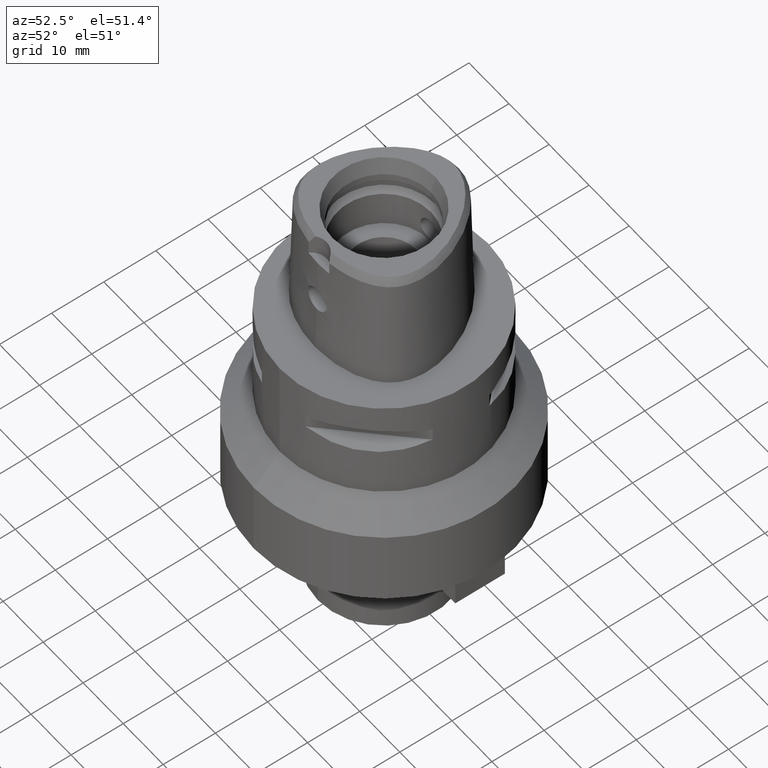
[diagram: clean part render]
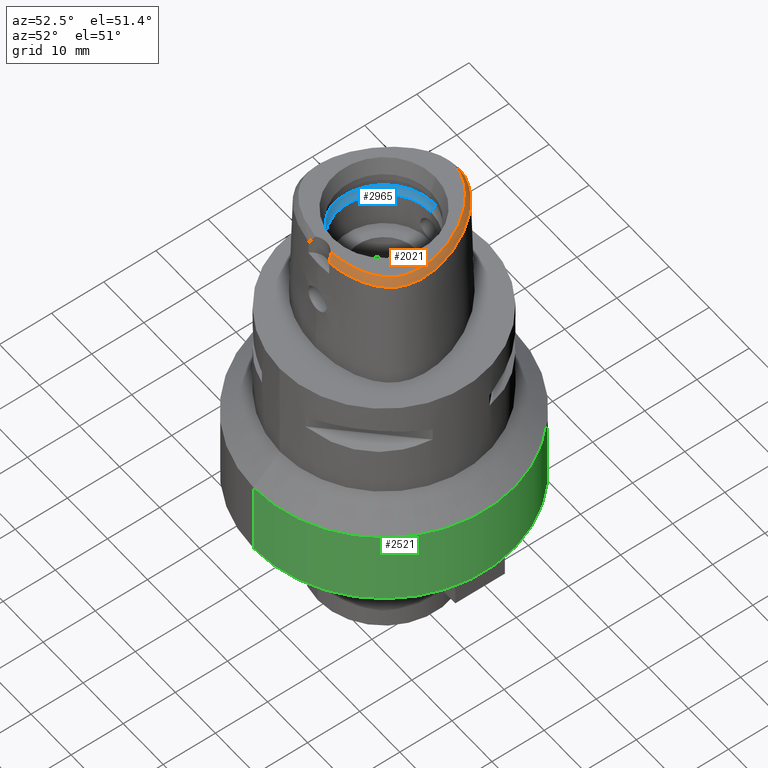
[diagram: same view with three faces highlighted in distinct colors, each labeled with its STEP entity id]
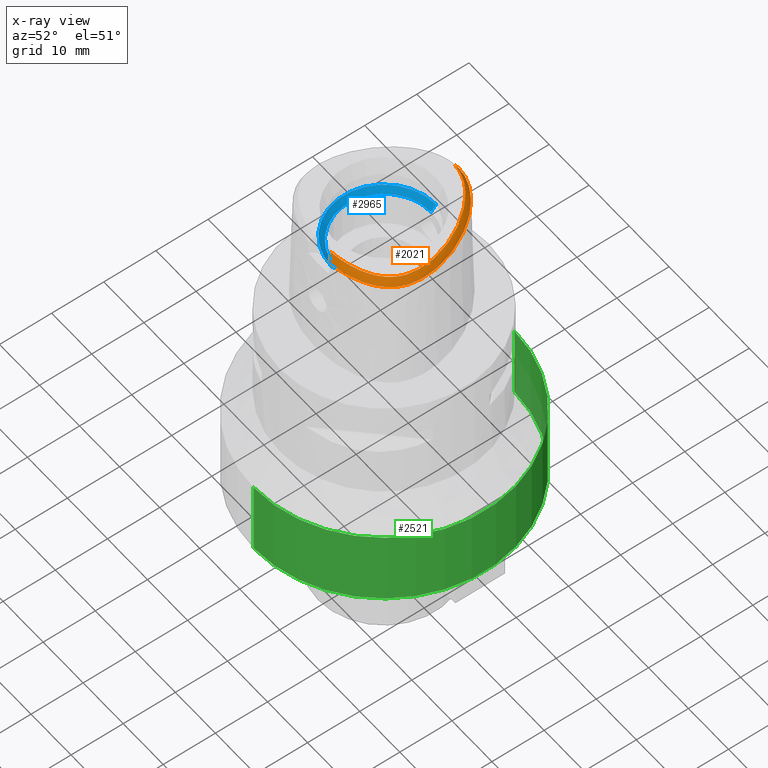
[diagram: x-ray of the same camera — body ghosted, the three highlighted faces saturated]
A machine part, auxiliary view with three faces highlighted in distinct colors.
The next image is the same camera in x-ray (body ghosted, the three faces saturated) — at least one of them is partly hidden behind the body in this view.
Their STEP definitions:

[orange] entity #2021 — the highlighted face is a freeform B-spline surface patch.
#62=CARTESIAN_POINT('',(-1.335434154492E-10,1.357127880781E1,2.4E1));
#67=CARTESIAN_POINT('',(-1.335434154492E-10,1.357127880781E1,2.4E1));
#68=CARTESIAN_POINT('',(2.326887164265E-1,1.357127880781E1,2.4E1));
#69=CARTESIAN_POINT('',(7.086636086809E-1,1.354509684396E1,2.4E1));
#70=CARTESIAN_POINT('',(1.446969844381E0,1.342404071185E1,2.4E1));
#71=CARTESIAN_POINT('',(2.231990430355E0,1.321044261445E1,2.4E1));
#72=CARTESIAN_POINT('',(3.075214782639E0,1.288578822454E1,2.4E1));
#73=CARTESIAN_POINT('',(3.947988413780E0,1.244798505686E1,2.4E1));
#74=CARTESIAN_POINT('',(4.833713105370E0,1.189982419996E1,2.4E1));
#75=CARTESIAN_POINT('',(5.726426226135E0,1.123924703062E1,2.4E1));
#76=CARTESIAN_POINT('',(6.627219881333E0,1.045894737439E1,2.4E1));
#77=CARTESIAN_POINT('',(7.586419771643E0,9.494244524670E0,2.4E1));
#78=CARTESIAN_POINT('',(8.607700177044E0,8.288181919142E0,2.4E1));
#79=CARTESIAN_POINT('',(9.593470664995E0,6.906666148699E0,2.4E1));
#80=CARTESIAN_POINT('',(1.047629565630E1,5.429624091934E0,2.4E1));
#81=CARTESIAN_POINT('',(1.123295380242E1,3.895967260593E0,2.4E1));
#82=CARTESIAN_POINT('',(1.183585486146E1,2.368610971544E0,2.4E1));
#83=CARTESIAN_POINT('',(1.225433049521E1,9.868925083546E-1,2.4E1));
#84=CARTESIAN_POINT('',(1.252347034157E1,-2.258220878723E-1,2.4E1));
#85=CARTESIAN_POINT('',(1.268550600127E1,-1.349472160980E0,2.4E1));
#86=CARTESIAN_POINT('',(1.275271536728E1,-2.404762809317E0,2.4E1));
#87=CARTESIAN_POINT('',(1.272977521155E1,-3.412666733518E0,2.4E1));
#88=CARTESIAN_POINT('',(1.261882457618E1,-4.344810590271E0,2.4E1));
#89=CARTESIAN_POINT('',(1.243585754802E1,-5.168251758581E0,2.4E1));
#90=CARTESIAN_POINT('',(1.219124357805E1,-5.902649423845E0,2.4E1));
#91=CARTESIAN_POINT('',(1.189523718523E1,-6.552679370792E0,2.4E1));
#92=CARTESIAN_POINT('',(1.154582900459E1,-7.142607699908E0,2.4E1));
#93=CARTESIAN_POINT('',(1.111439827426E1,-7.721008997285E0,2.4E1));
#94=CARTESIAN_POINT('',(1.058070077712E1,-8.298274533153E0,2.4E1));
#95=CARTESIAN_POINT('',(9.934593796429E0,-8.867887688213E0,2.4E1));
#96=CARTESIAN_POINT('',(9.153246913462E0,-9.428339590540E0,2.4E1));
#97=CARTESIAN_POINT('',(8.278888295688E0,-9.938495868566E0,2.4E1));
#98=CARTESIAN_POINT('',(7.312343140950E0,-1.039828750331E1,2.4E1));
#99=CARTESIAN_POINT('',(6.237321411159E0,-1.080925071037E1,2.4E1));
#100=CARTESIAN_POINT('',(5.020402782635E0,-1.117379686633E1,2.4E1));
#101=CARTESIAN_POINT('',(3.563396467810E0,-1.148964956771E1,2.4E1));
#102=CARTESIAN_POINT('',(2.481945000023E0,-1.163398959931E1,2.4E1));
#103=CARTESIAN_POINT('',(1.908900751366E0,-1.168567549349E1,2.4E1));
#124=CARTESIAN_POINT('',(2.568703243657E0,-1.245023755174E1,2.252071758140E1));
#125=CARTESIAN_POINT('',(2.507210229871E0,-1.234831399297E1,2.271423897985E1));
#126=CARTESIAN_POINT('',(2.374553767255E0,-1.215603446767E1,2.308217229890E1));
#127=CARTESIAN_POINT('',(2.154993020107E0,-1.190418376398E1,2.357053164571E1));
#128=CARTESIAN_POINT('',(1.993044101234E0,-1.175507859722E1,2.386312605135E1));
#129=CARTESIAN_POINT('',(1.908900751366E0,-1.168567549349E1,2.4E1));
#134=CARTESIAN_POINT('',(-6.596689358390E-11,1.440001989798E1,
2.252071729253E1));
#135=CARTESIAN_POINT('',(2.531186689735E-1,1.440001989799E1,2.252071729253E1));
#136=CARTESIAN_POINT('',(7.550148793716E-1,1.437388888367E1,2.252058993061E1));
#137=CARTESIAN_POINT('',(1.555190685466E0,1.424916946951E1,2.252079311492E1));
#138=CARTESIAN_POINT('',(2.393896672424E0,1.402930540330E1,2.252069837944E1));
#139=CARTESIAN_POINT('',(3.283356517566E0,1.369971253322E1,2.252073177013E1));
#140=CARTESIAN_POINT('',(4.217180922891E0,1.324731579055E1,2.252072287078E1));
#141=CARTESIAN_POINT('',(5.171110698340E0,1.267292798691E1,2.252072142138E1));
#142=CARTESIAN_POINT('',(6.125472547742E0,1.198178995817E1,2.252072254863E1));
#143=CARTESIAN_POINT('',(7.071441873019E0,1.117790727282E1,2.252070237581E1));
#144=CARTESIAN_POINT('',(8.071976454001E0,1.019042121422E1,2.252072081970E1));
#145=CARTESIAN_POINT('',(9.129700572915E0,8.965548858348E0,2.252071805668E1));
#146=CARTESIAN_POINT('',(1.014851610520E1,7.569927625892E0,2.252068618676E1));
#147=CARTESIAN_POINT('',(1.107148148474E1,6.066454460380E0,2.252072175835E1));
#148=CARTESIAN_POINT('',(1.186687928512E1,4.506126905863E0,2.252070121726E1));
#149=CARTESIAN_POINT('',(1.251955553763E1,2.922086281846E0,2.252070214960E1));
#150=CARTESIAN_POINT('',(1.299259174432E1,1.439544558600E0,2.252072265010E1));
#151=CARTESIAN_POINT('',(1.330312381178E1,1.179613158383E-1,2.252073034492E1));
#152=CARTESIAN_POINT('',(1.349120007585E1,-1.085814669335E0,2.252070843037E1));
#153=CARTESIAN_POINT('',(1.357833140732E1,-2.229755030686E0,2.252072318454E1));
#154=CARTESIAN_POINT('',(1.356669540700E1,-3.325912481162E0,2.252071328605E1));
#155=CARTESIAN_POINT('',(1.346081274570E1,-4.333829012307E0,2.252072968807E1));
#156=CARTESIAN_POINT('',(1.327700622676E1,-5.232635489977E0,2.252071342434E1));
#157=CARTESIAN_POINT('',(1.302599562585E1,-6.040833633270E0,2.252071284771E1));
#158=CARTESIAN_POINT('',(1.271648948395E1,-6.766686392180E0,2.252072435670E1));
#159=CARTESIAN_POINT('',(1.234817650050E1,-7.429715981995E0,2.252076573979E1));
#160=CARTESIAN_POINT('',(1.190298104082E1,-8.063917939871E0,2.252071221122E1));
#161=CARTESIAN_POINT('',(1.136131997387E1,-8.688680802335E0,2.252072690878E1));
#162=CARTESIAN_POINT('',(1.071198714834E1,-9.301014125554E0,2.252071455205E1));
#163=CARTESIAN_POINT('',(9.935361548878E0,-9.901983774393E0,2.252072192296E1));
#164=CARTESIAN_POINT('',(9.024970585540E0,-1.047638468593E1,2.252071387924E1));
#165=CARTESIAN_POINT('',(8.022303607598E0,-1.099063212148E1,2.252072015064E1));
#166=CARTESIAN_POINT('',(6.921130989986E0,-1.144676282631E1,2.252072363666E1));
#167=CARTESIAN_POINT('',(5.695617379336E0,-1.184929997997E1,2.252069934664E1));
#168=CARTESIAN_POINT('',(4.236540918811E0,-1.220672091620E1,2.252071586884E1));
#169=CARTESIAN_POINT('',(3.143505986654E0,-1.238253563827E1,2.252071984830E1));
#170=CARTESIAN_POINT('',(2.568703243657E0,-1.245023755174E1,2.252071758140E1));
#226=DIRECTION('',(-3.985384057881E-11,-4.887572544033E-1,8.724198222577E-1));
#227=VECTOR('',#226,1.695608776565E0);
#228=CARTESIAN_POINT('',(-6.596689358390E-11,1.440001989798E1,
2.252071729253E1));
#229=LINE('',#228,#227);
#1582=CARTESIAN_POINT('',(1.908900751366E0,-1.168567549349E1,2.4E1));
#1584=VERTEX_POINT('',#1582);
#1586=VERTEX_POINT('',#62);
#1591=VERTEX_POINT('',#124);
#1596=CARTESIAN_POINT('',(-6.596689358390E-11,1.440001989798E1,
2.252071729253E1));
#1597=VERTEX_POINT('',#1596);
#1808=CARTESIAN_POINT('',(1.525712343009E0,-1.165117579652E1,2.411666862161E1));
#1809=CARTESIAN_POINT('',(1.548680728187E0,-1.197018293964E1,2.354577483534E1));
#1810=CARTESIAN_POINT('',(1.571649113366E0,-1.228919008275E1,2.297488104907E1));
#1811=CARTESIAN_POINT('',(1.594617498545E0,-1.260819722587E1,2.240398726280E1));
#1812=CARTESIAN_POINT('',(1.652008395356E0,-1.164207954244E1,2.411666862043E1));
#1813=CARTESIAN_POINT('',(1.676896230194E0,-1.196094849999E1,2.354577483994E1));
#1814=CARTESIAN_POINT('',(1.701784065031E0,-1.227981745755E1,2.297488105946E1));
#1815=CARTESIAN_POINT('',(1.726671899869E0,-1.259868641511E1,2.240398727897E1));
#1816=CARTESIAN_POINT('',(1.963744628878E0,-1.161678611984E1,2.411666862222E1));
#1817=CARTESIAN_POINT('',(1.993389974221E0,-1.193526942809E1,2.354577483297E1));
#1818=CARTESIAN_POINT('',(2.023035319564E0,-1.225375273634E1,2.297488104371E1));
#1819=CARTESIAN_POINT('',(2.052680664907E0,-1.257223604459E1,2.240398725445E1));
#1820=CARTESIAN_POINT('',(2.673850346761E0,-1.154311812085E1,2.411666865084E1));
#1821=CARTESIAN_POINT('',(2.714474859306E0,-1.186046325546E1,2.354577472155E1));
#1822=CARTESIAN_POINT('',(2.755099371852E0,-1.217780839008E1,2.297488079226E1));
#1823=CARTESIAN_POINT('',(2.795723884398E0,-1.249515352470E1,2.240398686297E1));
#1824=CARTESIAN_POINT('',(3.632414655391E0,-1.140148049252E1,2.411666874574E1));
#1825=CARTESIAN_POINT('',(3.688354107118E0,-1.171657518247E1,2.354577435209E1));
#1826=CARTESIAN_POINT('',(3.744293558845E0,-1.203166987243E1,2.297487995845E1));
#1827=CARTESIAN_POINT('',(3.800233010573E0,-1.234676456238E1,2.240398556481E1));
#1828=CARTESIAN_POINT('',(4.736034970444E0,-1.117035361537E1,2.411666848645E1));
#1829=CARTESIAN_POINT('',(4.810770952984E0,-1.148153294287E1,2.354577536157E1));
#1830=CARTESIAN_POINT('',(4.885506935524E0,-1.179271227036E1,2.297488223668E1));
#1831=CARTESIAN_POINT('',(4.960242918063E0,-1.210389159786E1,2.240398911180E1));
#1832=CARTESIAN_POINT('',(5.761075176608E0,-1.088981296938E1,2.411666838371E1));
#1833=CARTESIAN_POINT('',(5.854671781433E0,-1.119585647468E1,2.354577576155E1));
#1834=CARTESIAN_POINT('',(5.948268386259E0,-1.150189997999E1,2.297488313940E1));
#1835=CARTESIAN_POINT('',(6.041864991084E0,-1.180794348530E1,2.240399051725E1));
#1836=CARTESIAN_POINT('',(6.696772737364E0,-1.057025739118E1,2.411666860963E1));
#1837=CARTESIAN_POINT('',(6.809290315034E0,-1.086987308573E1,2.354577488198E1));
#1838=CARTESIAN_POINT('',(6.921807892704E0,-1.116948878027E1,2.297488115432E1));
#1839=CARTESIAN_POINT('',(7.034325470373E0,-1.146910447481E1,2.240398742667E1));
#1840=CARTESIAN_POINT('',(7.540394937423E0,-1.022103201972E1,2.411666872425E1));
#1841=CARTESIAN_POINT('',(7.671888140948E0,-1.051283030394E1,2.354577443576E1));
#1842=CARTESIAN_POINT('',(7.803381344473E0,-1.080462858815E1,2.297488014728E1));
#1843=CARTESIAN_POINT('',(7.934874547997E0,-1.109642687237E1,2.240398585879E1));
#1844=CARTESIAN_POINT('',(8.294567457613E0,-9.849776111064E0,2.411666868873E1));
#1845=CARTESIAN_POINT('',(8.444926223655E0,-1.013232961979E1,2.354577457403E1));
#1846=CARTESIAN_POINT('',(8.595284989696E0,-1.041488312852E1,2.297488045934E1));
#1847=CARTESIAN_POINT('',(8.745643755737E0,-1.069743663725E1,2.240398634465E1));
#1848=CARTESIAN_POINT('',(8.963314260009E0,-9.463267729834E0,2.411666864299E1));
#1849=CARTESIAN_POINT('',(9.132393877514E0,-9.735047998817E0,2.354577475208E1));
#1850=CARTESIAN_POINT('',(9.301473495019E0,-1.000682826780E1,2.297488086116E1));
#1851=CARTESIAN_POINT('',(9.470553112524E0,-1.027860853678E1,2.240398697025E1));
#1852=CARTESIAN_POINT('',(9.552504718907E0,-9.066712739893E0,2.411666862867E1));
#1853=CARTESIAN_POINT('',(9.739967365711E0,-9.326170361412E0,2.354577480786E1));
#1854=CARTESIAN_POINT('',(9.927430012514E0,-9.585627982931E0,2.297488098705E1));
#1855=CARTESIAN_POINT('',(1.011489265932E1,-9.845085604450E0,2.240398716624E1));
#1856=CARTESIAN_POINT('',(1.006809235891E1,-8.664551229670E0,2.411666870301E1));
#1857=CARTESIAN_POINT('',(1.027348455278E1,-8.910077310323E0,2.354577451843E1));
#1858=CARTESIAN_POINT('',(1.047887674665E1,-9.155603390977E0,2.297488033386E1));
#1859=CARTESIAN_POINT('',(1.068426894052E1,-9.401129471630E0,2.240398614928E1));
#1860=CARTESIAN_POINT('',(1.051747298546E1,-8.259033178957E0,2.411666869416E1));
#1861=CARTESIAN_POINT('',(1.074013716209E1,-8.489027388718E0,2.354577455290E1));
#1862=CARTESIAN_POINT('',(1.096280133873E1,-8.719021598478E0,2.297488041164E1));
#1863=CARTESIAN_POINT('',(1.118546551536E1,-8.949015808239E0,2.240398627038E1));
#1864=CARTESIAN_POINT('',(1.090742576045E1,-7.851556147838E0,2.411666867949E1));
#1865=CARTESIAN_POINT('',(1.114651522838E1,-8.064442545880E0,2.354577461E1));
#1866=CARTESIAN_POINT('',(1.138560469632E1,-8.277328943921E0,2.297488054052E1));
#1867=CARTESIAN_POINT('',(1.162469416425E1,-8.490215341963E0,2.240398647103E1));
#1868=CARTESIAN_POINT('',(1.124448591351E1,-7.442174621401E0,2.411666864723E1));
#1869=CARTESIAN_POINT('',(1.149895251638E1,-7.636433319950E0,2.354577473558E1));
#1870=CARTESIAN_POINT('',(1.175341911924E1,-7.830692018499E0,2.297488082393E1));
#1871=CARTESIAN_POINT('',(1.200788572211E1,-8.024950717048E0,2.240398691228E1));
#1872=CARTESIAN_POINT('',(1.153386150165E1,-7.030586321627E0,2.411666871498E1));
#1873=CARTESIAN_POINT('',(1.180243762903E1,-7.204840196854E0,2.354577447182E1));
#1874=CARTESIAN_POINT('',(1.207101375641E1,-7.379094072080E0,2.297488022865E1));
#1875=CARTESIAN_POINT('',(1.233958988378E1,-7.553347947307E0,2.240398598549E1));
#1876=CARTESIAN_POINT('',(1.177968454906E1,-6.617189166728E0,2.411666868069E1));
#1877=CARTESIAN_POINT('',(1.206100941114E1,-6.770013880400E0,2.354577460531E1));
#1878=CARTESIAN_POINT('',(1.234233427323E1,-6.922838594071E0,2.297488052992E1));
#1879=CARTESIAN_POINT('',(1.262365913531E1,-7.075663307743E0,2.240398645454E1));
#1880=CARTESIAN_POINT('',(1.199894572195E1,-6.174594353388E0,2.411666868072E1));
#1881=CARTESIAN_POINT('',(1.229117100467E1,-6.305346949206E0,2.354577460519E1));
#1882=CARTESIAN_POINT('',(1.258339628739E1,-6.436099545024E0,2.297488052965E1));
#1883=CARTESIAN_POINT('',(1.287562157011E1,-6.566852140842E0,2.240398645412E1));
#1884=CARTESIAN_POINT('',(1.219400129688E1,-5.691565277128E0,2.411666865709E1));
#1885=CARTESIAN_POINT('',(1.249528368824E1,-5.799802821774E0,2.354577469721E1));
#1886=CARTESIAN_POINT('',(1.279656607960E1,-5.908040366420E0,2.297488073734E1));
#1887=CARTESIAN_POINT('',(1.309784847096E1,-6.016277911066E0,2.240398677746E1));
#1888=CARTESIAN_POINT('',(1.236157962079E1,-5.165958089392E0,2.411666869407E1));
#1889=CARTESIAN_POINT('',(1.267007989172E1,-5.251438485992E0,2.354577455324E1));
#1890=CARTESIAN_POINT('',(1.297858016264E1,-5.336918882591E0,2.297488041240E1));
#1891=CARTESIAN_POINT('',(1.328708043356E1,-5.422399279191E0,2.240398627156E1));
#1892=CARTESIAN_POINT('',(1.249910606430E1,-4.591414347818E0,2.411666870281E1));
#1893=CARTESIAN_POINT('',(1.281301378790E1,-4.654132857010E0,2.354577451917E1));
#1894=CARTESIAN_POINT('',(1.312692151151E1,-4.716851366202E0,2.297488033554E1));
#1895=CARTESIAN_POINT('',(1.344082923511E1,-4.779569875394E0,2.240398615190E1));
#1896=CARTESIAN_POINT('',(1.260223504531E1,-3.963196947343E0,2.411666866118E1));
#1897=CARTESIAN_POINT('',(1.291980942721E1,-4.003320681738E0,2.354577468129E1));
#1898=CARTESIAN_POINT('',(1.323738380910E1,-4.043444416134E0,2.297488070139E1));
#1899=CARTESIAN_POINT('',(1.355495819100E1,-4.083568150530E0,2.240398672150E1));
#1900=CARTESIAN_POINT('',(1.266576405003E1,-3.275343453399E0,2.411666861516E1));
#1901=CARTESIAN_POINT('',(1.298534981784E1,-3.293234211599E0,2.354577486047E1));
#1902=CARTESIAN_POINT('',(1.330493558566E1,-3.311124969799E0,2.297488110577E1));
#1903=CARTESIAN_POINT('',(1.362452135347E1,-3.329015727999E0,2.240398735107E1));
#1904=CARTESIAN_POINT('',(1.268317782361E1,-2.524703016097E0,2.411666869140E1));
#1905=CARTESIAN_POINT('',(1.300322760979E1,-2.520816755639E0,2.354577456363E1));
#1906=CARTESIAN_POINT('',(1.332327739596E1,-2.516930495180E0,2.297488043586E1));
#1907=CARTESIAN_POINT('',(1.364332718214E1,-2.513044234722E0,2.240398630808E1));
#1908=CARTESIAN_POINT('',(1.264720221256E1,-1.708177922589E0,2.411666870098E1));
#1909=CARTESIAN_POINT('',(1.296628031449E1,-1.683110647141E0,2.354577452635E1));
#1910=CARTESIAN_POINT('',(1.328535841643E1,-1.658043371693E0,2.297488035171E1));
#1911=CARTESIAN_POINT('',(1.360443651836E1,-1.632976096245E0,2.240398617708E1));
#1912=CARTESIAN_POINT('',(1.255012108120E1,-8.252641558455E-1,
2.411666869569E1));
#1913=CARTESIAN_POINT('',(1.286690215127E1,-7.796382098450E-1,
2.354577454696E1));
#1914=CARTESIAN_POINT('',(1.318368322134E1,-7.340122638446E-1,
2.297488039823E1));
#1915=CARTESIAN_POINT('',(1.350046429141E1,-6.883863178441E-1,
2.240398624950E1));
#1916=CARTESIAN_POINT('',(1.238396597058E1,1.232049080333E-1,2.411666842403E1));
#1917=CARTESIAN_POINT('',(1.269723749033E1,1.886729513380E-1,2.354577560457E1));
#1918=CARTESIAN_POINT('',(1.301050901008E1,2.541409946428E-1,2.297488278511E1));
#1919=CARTESIAN_POINT('',(1.332378052983E1,3.196090379475E-1,2.240398996564E1));
#1920=CARTESIAN_POINT('',(1.214127166513E1,1.133236486889E0,2.411666840139E1));
#1921=CARTESIAN_POINT('',(1.244991599722E1,1.217842368797E0,2.354577569274E1));
#1922=CARTESIAN_POINT('',(1.275856032932E1,1.302448250706E0,2.297488298410E1));
#1923=CARTESIAN_POINT('',(1.306720466141E1,1.387054132615E0,2.240399027545E1));
#1924=CARTESIAN_POINT('',(1.181741872267E1,2.191712992537E0,2.411666868747E1));
#1925=CARTESIAN_POINT('',(1.212039657330E1,2.294764641303E0,2.354577457893E1));
#1926=CARTESIAN_POINT('',(1.242337442392E1,2.397816290069E0,2.297488047038E1));
#1927=CARTESIAN_POINT('',(1.272635227454E1,2.500867938835E0,2.240398636184E1));
#1928=CARTESIAN_POINT('',(1.141000696374E1,3.284175189649E0,2.411666869382E1));
#1929=CARTESIAN_POINT('',(1.170632578584E1,3.405034366331E0,2.354577455421E1));
#1930=CARTESIAN_POINT('',(1.200264460793E1,3.525893543013E0,2.297488041460E1));
#1931=CARTESIAN_POINT('',(1.229896343003E1,3.646752719695E0,2.240398627499E1));
#1932=CARTESIAN_POINT('',(1.091962252652E1,4.393670334221E0,2.411666860283E1));
#1933=CARTESIAN_POINT('',(1.120834972695E1,4.531676563397E0,2.354577490845E1));
#1934=CARTESIAN_POINT('',(1.149707692738E1,4.669682792572E0,2.297488121406E1));
#1935=CARTESIAN_POINT('',(1.178580412781E1,4.807689021748E0,2.240398751968E1));
#1936=CARTESIAN_POINT('',(1.035310715690E1,5.495768784498E0,2.411666869171E1));
#1937=CARTESIAN_POINT('',(1.063331574745E1,5.650338641119E0,2.354577456245E1));
#1938=CARTESIAN_POINT('',(1.091352433801E1,5.804908497740E0,2.297488043319E1));
#1939=CARTESIAN_POINT('',(1.119373292856E1,5.959478354361E0,2.240398630394E1));
#1940=CARTESIAN_POINT('',(9.720183294679E0,6.567979994001E0,2.411666864301E1));
#1941=CARTESIAN_POINT('',(9.990917779822E0,6.738601397809E0,2.354577475203E1));
#1942=CARTESIAN_POINT('',(1.026165226496E1,6.909222801617E0,2.297488086105E1));
#1943=CARTESIAN_POINT('',(1.053238675011E1,7.079844205425E0,2.240398697007E1));
#1944=CARTESIAN_POINT('',(9.032264435636E0,7.591571580907E0,2.411666858619E1));
#1945=CARTESIAN_POINT('',(9.292599671579E0,7.777677084020E0,2.354577497326E1));
#1946=CARTESIAN_POINT('',(9.552934907523E0,7.963782587133E0,2.297488136033E1));
#1947=CARTESIAN_POINT('',(9.813270143467E0,8.149888090246E0,2.240398774740E1));
#1948=CARTESIAN_POINT('',(8.305933688560E0,8.545981940211E0,2.411666871405E1));
#1949=CARTESIAN_POINT('',(8.554882722019E0,8.747072022697E0,2.354577447545E1));
#1950=CARTESIAN_POINT('',(8.803831755478E0,8.948162105182E0,2.297488023686E1));
#1951=CARTESIAN_POINT('',(9.052780788938E0,9.149252187668E0,2.240398599827E1));
#1952=CARTESIAN_POINT('',(7.557738407264E0,9.416474351334E0,2.411666861436E1));
#1953=CARTESIAN_POINT('',(7.794246555458E0,9.632067718808E0,2.354577486355E1));
#1954=CARTESIAN_POINT('',(8.030754703653E0,9.847661086282E0,2.297488111274E1));
#1955=CARTESIAN_POINT('',(8.267262851848E0,1.006325445376E1,2.240398736193E1));
#1956=CARTESIAN_POINT('',(6.801892498696E0,1.019542232361E1,2.411666847922E1));
#1957=CARTESIAN_POINT('',(7.024897686943E0,1.042496485364E1,2.354577538970E1));
#1958=CARTESIAN_POINT('',(7.247902875190E0,1.065450738367E1,2.297488230017E1));
#1959=CARTESIAN_POINT('',(7.470908063437E0,1.088404991369E1,2.240398921065E1));
#1960=CARTESIAN_POINT('',(6.052497867454E0,1.087820741042E1,2.411666863987E1));
#1961=CARTESIAN_POINT('',(6.260863973669E0,1.112112938046E1,2.354577476422E1));
#1962=CARTESIAN_POINT('',(6.469230079884E0,1.136405135050E1,2.297488088856E1));
#1963=CARTESIAN_POINT('',(6.677596186100E0,1.160697332054E1,2.240398701291E1));
#1964=CARTESIAN_POINT('',(5.321652637822E0,1.146445845946E1,2.411666873467E1));
#1965=CARTESIAN_POINT('',(5.514168351430E0,1.172013815167E1,2.354577439518E1));
#1966=CARTESIAN_POINT('',(5.706684065038E0,1.197581784387E1,2.297488005569E1));
#1967=CARTESIAN_POINT('',(5.899199778646E0,1.223149753608E1,2.240398571621E1));
#1968=CARTESIAN_POINT('',(4.614155049186E0,1.196065017739E1,2.411666835333E1));
#1969=CARTESIAN_POINT('',(4.789628584320E0,1.222832626728E1,2.354577587986E1));
#1970=CARTESIAN_POINT('',(4.965102119453E0,1.249600235717E1,2.297488340640E1));
#1971=CARTESIAN_POINT('',(5.140575654586E0,1.276367844706E1,2.240399093294E1));
#1972=CARTESIAN_POINT('',(3.933754294573E0,1.237371288058E1,2.411666820757E1));
#1973=CARTESIAN_POINT('',(4.090972788668E0,1.265251683781E1,2.354577644732E1));
#1974=CARTESIAN_POINT('',(4.248191282763E0,1.293132079504E1,2.297488468707E1));
#1975=CARTESIAN_POINT('',(4.405409776858E0,1.321012475226E1,2.240399292682E1));
#1976=CARTESIAN_POINT('',(3.284673241771E0,1.270985091035E1,2.411666840835E1));
#1977=CARTESIAN_POINT('',(3.422430636218E0,1.299878096612E1,2.354577566561E1));
#1978=CARTESIAN_POINT('',(3.560188030665E0,1.328771102188E1,2.297488292287E1));
#1979=CARTESIAN_POINT('',(3.697945425112E0,1.357664107764E1,2.240399018012E1));
#1980=CARTESIAN_POINT('',(2.668799332323E0,1.297637201177E1,2.411666874018E1));
#1981=CARTESIAN_POINT('',(2.785908473498E0,1.327428435379E1,2.354577437370E1));
#1982=CARTESIAN_POINT('',(2.903017614673E0,1.357219669582E1,2.297488000723E1));
#1983=CARTESIAN_POINT('',(3.020126755848E0,1.387010903785E1,2.240398564075E1));
#1984=CARTESIAN_POINT('',(2.083880384516E0,1.318150034741E1,2.411666873085E1));
#1985=CARTESIAN_POINT('',(2.179238069917E0,1.348708352423E1,2.354577441003E1));
#1986=CARTESIAN_POINT('',(2.274595755318E0,1.379266670104E1,2.297488008922E1));
#1987=CARTESIAN_POINT('',(2.369953440719E0,1.409824987786E1,2.240398576841E1));
#1988=CARTESIAN_POINT('',(1.526469777886E0,1.333247247903E1,2.411666866013E1));
#1989=CARTESIAN_POINT('',(1.599104534004E0,1.364425122407E1,2.354577468535E1));
#1990=CARTESIAN_POINT('',(1.671739290123E0,1.395602996912E1,2.297488071056E1));
#1991=CARTESIAN_POINT('',(1.744374046241E0,1.426780871417E1,2.240398673578E1));
#1992=CARTESIAN_POINT('',(9.958045628935E-1,1.343480185850E1,2.411666869744E1));
#1993=CARTESIAN_POINT('',(1.044868716116E0,1.375115709267E1,2.354577454011E1));
#1994=CARTESIAN_POINT('',(1.093932869339E0,1.406751232683E1,2.297488038277E1));
#1995=CARTESIAN_POINT('',(1.142997022561E0,1.438386756099E1,2.240398622544E1));
#1996=CARTESIAN_POINT('',(4.861893978885E-1,1.349342218237E1,2.411666870735E1));
#1997=CARTESIAN_POINT('',(5.110222010874E-1,1.381260792658E1,2.354577450152E1));
#1998=CARTESIAN_POINT('',(5.358550042864E-1,1.413179367080E1,2.297488029570E1));
#1999=CARTESIAN_POINT('',(5.606878074853E-1,1.445097941502E1,2.240398608987E1));
#2000=CARTESIAN_POINT('',(4.599211656133E-2,1.351047371726E1,2.411666866442E1));
#2001=CARTESIAN_POINT('',(4.819225193049E-2,1.383054263469E1,2.354577466865E1));
#2002=CARTESIAN_POINT('',(5.039238729965E-2,1.415061155212E1,2.297488067289E1));
#2003=CARTESIAN_POINT('',(5.259252266880E-2,1.447068046955E1,2.240398667712E1));
#2004=CARTESIAN_POINT('',(-2.398974264720E-1,1.350259431171E1,
2.411666868426E1));
#2005=CARTESIAN_POINT('',(-2.519041915100E-1,1.382225512043E1,
2.354577459143E1));
#2006=CARTESIAN_POINT('',(-2.639109565480E-1,1.414191592915E1,
2.297488049859E1));
#2007=CARTESIAN_POINT('',(-2.759177215861E-1,1.446157673787E1,
2.240398640576E1));
#2008=CARTESIAN_POINT('',(-3.642781571573E-1,1.349610295065E1,
2.411666871079E1));
#2009=CARTESIAN_POINT('',(-3.821936810474E-1,1.381541424522E1,
2.354577448816E1));
#2010=CARTESIAN_POINT('',(-4.001092049375E-1,1.413472553980E1,
2.297488026554E1));
#2011=CARTESIAN_POINT('',(-4.180247288276E-1,1.445403683437E1,
2.240398604291E1));
#2012=B_SPLINE_SURFACE_WITH_KNOTS('',3,3,((#1808,#1809,#1810,#1811),(#1812,
#1813,#1814,#1815),(#1816,#1817,#1818,#1819),(#1820,#1821,#1822,#1823),(#1824,
#1825,#1826,#1827),(#1828,#1829,#1830,#1831),(#1832,#1833,#1834,#1835),(#1836,
#1837,#1838,#1839),(#1840,#1841,#1842,#1843),(#1844,#1845,#1846,#1847),(#1848,
#1849,#1850,#1851),(#1852,#1853,#1854,#1855),(#1856,#1857,#1858,#1859),(#1860,
#1861,#1862,#1863),(#1864,#1865,#1866,#1867),(#1868,#1869,#1870,#1871),(#1872,
#1873,#1874,#1875),(#1876,#1877,#1878,#1879),(#1880,#1881,#1882,#1883),(#1884,
#1885,#1886,#1887),(#1888,#1889,#1890,#1891),(#1892,#1893,#1894,#1895),(#1896,
#1897,#1898,#1899),(#1900,#1901,#1902,#1903),(#1904,#1905,#1906,#1907),(#1908,
#1909,#1910,#1911),(#1912,#1913,#1914,#1915),(#1916,#1917,#1918,#1919),(#1920,
#1921,#1922,#1923),(#1924,#1925,#1926,#1927),(#1928,#1929,#1930,#1931),(#1932,
#1933,#1934,#1935),(#1936,#1937,#1938,#1939),(#1940,#1941,#1942,#1943),(#1944,
#1945,#1946,#1947),(#1948,#1949,#1950,#1951),(#1952,#1953,#1954,#1955),(#1956,
#1957,#1958,#1959),(#1960,#1961,#1962,#1963),(#1964,#1965,#1966,#1967),(#1968,
#1969,#1970,#1971),(#1972,#1973,#1974,#1975),(#1976,#1977,#1978,#1979),(#1980,
#1981,#1982,#1983),(#1984,#1985,#1986,#1987),(#1988,#1989,#1990,#1991),(#1992,
#1993,#1994,#1995),(#1996,#1997,#1998,#1999),(#2000,#2001,#2002,#2003),(#2004,
#2005,#2006,#2007),(#2008,#2009,#2010,#2011)),.UNSPECIFIED.,.F.,.F.,.F.,(4,1,1,
1,1,1,1,1,1,1,1,1,1,1,1,1,1,1,1,1,1,1,1,1,1,1,1,1,1,1,1,1,1,1,1,1,1,1,1,1,1,1,1,
1,1,1,1,1,4),(4,4),(-6.801674744685E-3,0.E0,1.005137981102E-2,3.205023803730E-2,
5.404909626358E-2,7.604795448985E-2,9.804681271615E-2,1.200456709425E-1,
1.420445291686E-1,1.640433873949E-1,1.860422456212E-1,2.080411038475E-1,
2.300399620738E-1,2.520388203001E-1,2.740376785263E-1,2.960365367526E-1,
3.180353949789E-1,3.400342532052E-1,3.620331114315E-1,3.840319696577E-1,
4.060308278840E-1,4.280296861103E-1,4.500285443366E-1,4.720274025629E-1,
4.940262607891E-1,5.160251190154E-1,5.380239772417E-1,5.600228354680E-1,
5.820216936943E-1,6.040205519205E-1,6.260194101468E-1,6.480182683731E-1,
6.700171265994E-1,6.920159848257E-1,7.140148430519E-1,7.360137012782E-1,
7.580125595045E-1,7.800114177308E-1,8.020102759571E-1,8.240091341834E-1,
8.460079924095E-1,8.680068506358E-1,8.900057088621E-1,9.120045670884E-1,
9.340034253147E-1,9.560022835409E-1,9.780011417672E-1,1.E0,1.016043917559E0),(
-5.660420872594E-2,1.056644163453E0),.UNSPECIFIED.);
#2013=ORIENTED_EDGE('',*,*,#1795,.T.);
#2014=ORIENTED_EDGE('',*,*,#1778,.F.);
#2016=ORIENTED_EDGE('',*,*,#2015,.F.);
#2018=ORIENTED_EDGE('',*,*,#2017,.T.);
#2019=EDGE_LOOP('',(#2013,#2014,#2016,#2018));
#2020=FACE_OUTER_BOUND('',#2019,.F.);
#104=B_SPLINE_CURVE_WITH_KNOTS('',3,(#67,#68,#69,#70,#71,#72,#73,#74,#75,#76,
#77,#78,#79,#80,#81,#82,#83,#84,#85,#86,#87,#88,#89,#90,#91,#92,#93,#94,#95,#96,
#97,#98,#99,#100,#101,#102,#103),.UNSPECIFIED.,.F.,.F.,(4,1,1,1,1,1,1,1,1,1,1,1,
1,1,1,1,1,1,1,1,1,1,1,1,1,1,1,1,1,1,1,1,1,1,4),(0.E0,2.941176470588E-2,
5.882352941176E-2,8.823529411765E-2,1.176470588235E-1,1.470588235294E-1,
1.764705882353E-1,2.058823529412E-1,2.352941176471E-1,2.647058823529E-1,
2.941176470588E-1,3.235294117647E-1,3.529411764706E-1,3.823529411765E-1,
4.117647058824E-1,4.411764705882E-1,4.705882352941E-1,5.E-1,5.294117647059E-1,
5.588235294118E-1,5.882352941176E-1,6.176470588235E-1,6.470588235294E-1,
6.764705882353E-1,7.058823529412E-1,7.352941176471E-1,7.647058823529E-1,
7.941176470588E-1,8.235294117647E-1,8.529411764706E-1,8.823529411765E-1,
9.117647058824E-1,9.411764705882E-1,9.705882352941E-1,1.E0),.UNSPECIFIED.);
#130=B_SPLINE_CURVE_WITH_KNOTS('',3,(#124,#125,#126,#127,#128,#129),
.UNSPECIFIED.,.F.,.F.,(4,1,1,4),(0.E0,3.333333333333E-1,6.666666666667E-1,1.E0),
.UNSPECIFIED.);
#171=B_SPLINE_CURVE_WITH_KNOTS('',3,(#134,#135,#136,#137,#138,#139,#140,#141,
#142,#143,#144,#145,#146,#147,#148,#149,#150,#151,#152,#153,#154,#155,#156,#157,
#158,#159,#160,#161,#162,#163,#164,#165,#166,#167,#168,#169,#170),.UNSPECIFIED.,
.F.,.F.,(4,1,1,1,1,1,1,1,1,1,1,1,1,1,1,1,1,1,1,1,1,1,1,1,1,1,1,1,1,1,1,1,1,1,4),
(0.E0,2.941176470588E-2,5.882352941176E-2,8.823529411765E-2,1.176470588235E-1,
1.470588235294E-1,1.764705882353E-1,2.058823529412E-1,2.352941176471E-1,
2.647058823529E-1,2.941176470588E-1,3.235294117647E-1,3.529411764706E-1,
3.823529411765E-1,4.117647058824E-1,4.411764705882E-1,4.705882352941E-1,5.E-1,
5.294117647059E-1,5.588235294118E-1,5.882352941176E-1,6.176470588235E-1,
6.470588235294E-1,6.764705882353E-1,7.058823529412E-1,7.352941176471E-1,
7.647058823529E-1,7.941176470588E-1,8.235294117647E-1,8.529411764706E-1,
8.823529411765E-1,9.117647058824E-1,9.411764705882E-1,9.705882352941E-1,1.E0),
.UNSPECIFIED.);
#1778=EDGE_CURVE('',#1586,#1584,#104,.T.);
#1795=EDGE_CURVE('',#1591,#1584,#130,.T.);
#2015=EDGE_CURVE('',#1597,#1586,#229,.T.);
#2017=EDGE_CURVE('',#1597,#1591,#171,.T.);
#2021=ADVANCED_FACE('',(#2020),#2012,.F.);

[blue] entity #2965 — the highlighted conical surface has half-angle 45 deg.
#990=DIRECTION('',(0.E0,-7.071067811865E-1,7.071067811865E-1));
#991=VECTOR('',#990,1.414213562373E0);
#992=CARTESIAN_POINT('',(0.E0,-9.E0,1.61E1));
#993=LINE('',#992,#991);
#997=CARTESIAN_POINT('',(0.E0,1.427938167806E-14,1.71E1));
#998=DIRECTION('',(0.E0,0.E0,-1.E0));
#999=DIRECTION('',(0.E0,-1.E0,0.E0));
#1000=AXIS2_PLACEMENT_3D('',#997,#998,#999);
#1005=CARTESIAN_POINT('',(0.E0,1.427938167806E-14,1.61E1));
#1006=DIRECTION('',(0.E0,0.E0,1.E0));
#1007=DIRECTION('',(0.E0,1.E0,0.E0));
#1008=AXIS2_PLACEMENT_3D('',#1005,#1006,#1007);
#1021=DIRECTION('',(0.E0,7.071067811865E-1,7.071067811865E-1));
#1022=VECTOR('',#1021,1.414213562373E0);
#1023=CARTESIAN_POINT('',(0.E0,9.E0,1.61E1));
#1024=LINE('',#1023,#1022);
#1726=CARTESIAN_POINT('',(0.E0,9.E0,1.61E1));
#1727=VERTEX_POINT('',#1726);
#1728=CARTESIAN_POINT('',(0.E0,-9.E0,1.61E1));
#1729=VERTEX_POINT('',#1728);
#1737=CARTESIAN_POINT('',(0.E0,-1.E1,1.71E1));
#1738=VERTEX_POINT('',#1737);
#1739=CARTESIAN_POINT('',(0.E0,1.E1,1.71E1));
#1740=VERTEX_POINT('',#1739);
#2951=CARTESIAN_POINT('',(0.E0,1.427938167806E-14,1.66E1));
#2952=DIRECTION('',(0.E0,0.E0,1.E0));
#2953=DIRECTION('',(0.E0,1.E0,0.E0));
#2954=AXIS2_PLACEMENT_3D('',#2951,#2952,#2953);
#2955=CONICAL_SURFACE('',#2954,9.5E0,4.5E1);
#2957=ORIENTED_EDGE('',*,*,#2956,.T.);
#2959=ORIENTED_EDGE('',*,*,#2958,.T.);
#2961=ORIENTED_EDGE('',*,*,#2960,.F.);
#2962=ORIENTED_EDGE('',*,*,#2794,.T.);
#2963=EDGE_LOOP('',(#2957,#2959,#2961,#2962));
#2964=FACE_OUTER_BOUND('',#2963,.F.);
#1001=CIRCLE('',#1000,1.E1);
#1009=CIRCLE('',#1008,9.E0);
#2794=EDGE_CURVE('',#1727,#1729,#1009,.T.);
#2956=EDGE_CURVE('',#1729,#1738,#993,.T.);
#2958=EDGE_CURVE('',#1738,#1740,#1001,.T.);
#2960=EDGE_CURVE('',#1727,#1740,#1024,.T.);
#2965=ADVANCED_FACE('',(#2964),#2955,.F.);

[green] entity #2521 — the highlighted cylindrical surface (partial cylindrical patch) has radius 25 mm, axis along (0, 0, -1).
#497=CARTESIAN_POINT('',(0.E0,0.E0,-2.52E1));
#498=DIRECTION('',(0.E0,0.E0,-1.E0));
#499=DIRECTION('',(0.E0,1.E0,0.E0));
#500=AXIS2_PLACEMENT_3D('',#497,#498,#499);
#536=DIRECTION('',(0.E0,0.E0,-1.E0));
#537=VECTOR('',#536,1.48E1);
#538=CARTESIAN_POINT('',(0.E0,-2.5E1,-2.52E1));
#539=LINE('',#538,#537);
#543=DIRECTION('',(0.E0,0.E0,-1.E0));
#544=VECTOR('',#543,1.48E1);
#545=CARTESIAN_POINT('',(0.E0,2.5E1,-2.52E1));
#546=LINE('',#545,#544);
#550=CARTESIAN_POINT('',(0.E0,1.262610849921E-14,-4.E1));
#551=DIRECTION('',(0.E0,0.E0,1.E0));
#552=DIRECTION('',(0.E0,-1.E0,0.E0));
#553=AXIS2_PLACEMENT_3D('',#550,#551,#552);
#1664=CARTESIAN_POINT('',(0.E0,2.5E1,-2.52E1));
#1665=VERTEX_POINT('',#1664);
#1666=CARTESIAN_POINT('',(0.E0,-2.5E1,-2.52E1));
#1667=VERTEX_POINT('',#1666);
#1668=CARTESIAN_POINT('',(0.E0,2.5E1,-4.E1));
#1669=VERTEX_POINT('',#1668);
#1670=CARTESIAN_POINT('',(0.E0,-2.5E1,-4.E1));
#1671=VERTEX_POINT('',#1670);
#2509=CARTESIAN_POINT('',(0.E0,1.262610849921E-14,3.1E0));
#2510=DIRECTION('',(0.E0,0.E0,-1.E0));
#2511=DIRECTION('',(0.E0,-1.E0,0.E0));
#2512=AXIS2_PLACEMENT_3D('',#2509,#2510,#2511);
#2513=CYLINDRICAL_SURFACE('',#2512,2.5E1);
#2514=ORIENTED_EDGE('',*,*,#2499,.T.);
#2516=ORIENTED_EDGE('',*,*,#2515,.F.);
#2517=ORIENTED_EDGE('',*,*,#2502,.F.);
#2518=ORIENTED_EDGE('',*,*,#2473,.F.);
#2519=EDGE_LOOP('',(#2514,#2516,#2517,#2518));
#2520=FACE_OUTER_BOUND('',#2519,.F.);
#501=CIRCLE('',#500,2.5E1);
#554=CIRCLE('',#553,2.5E1);
#2473=EDGE_CURVE('',#1665,#1667,#501,.T.);
#2499=EDGE_CURVE('',#1665,#1669,#546,.T.);
#2502=EDGE_CURVE('',#1667,#1671,#539,.T.);
#2515=EDGE_CURVE('',#1671,#1669,#554,.T.);
#2521=ADVANCED_FACE('',(#2520),#2513,.T.);